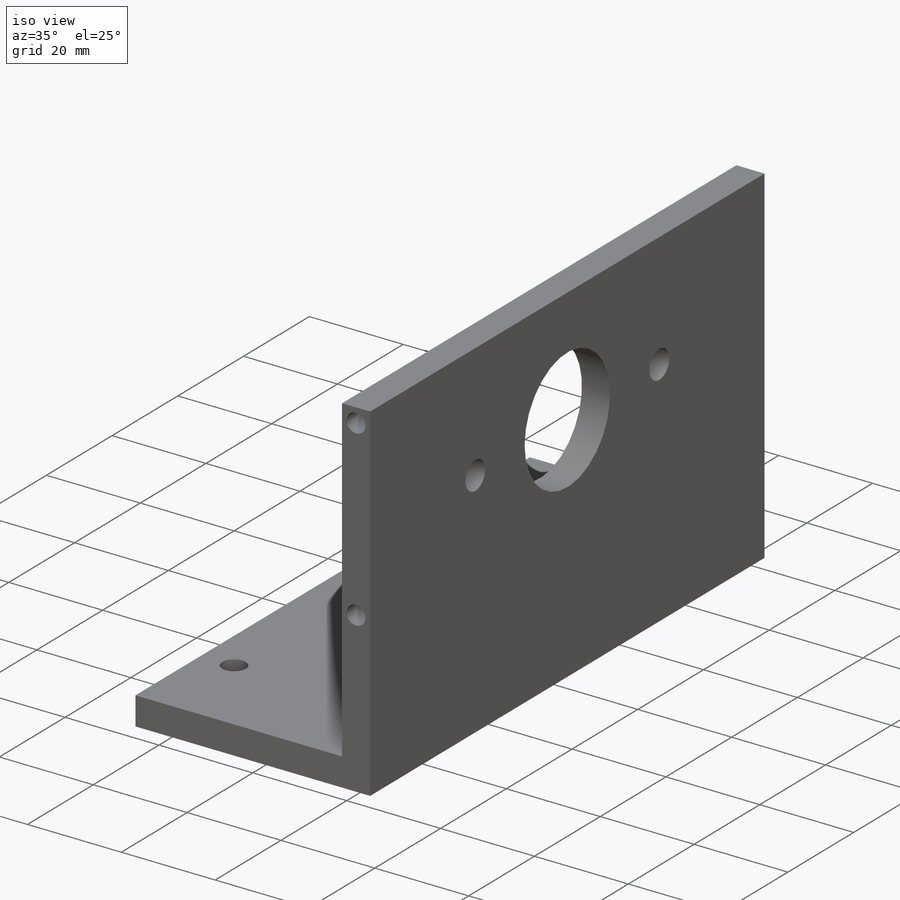
[diagram: iso view]
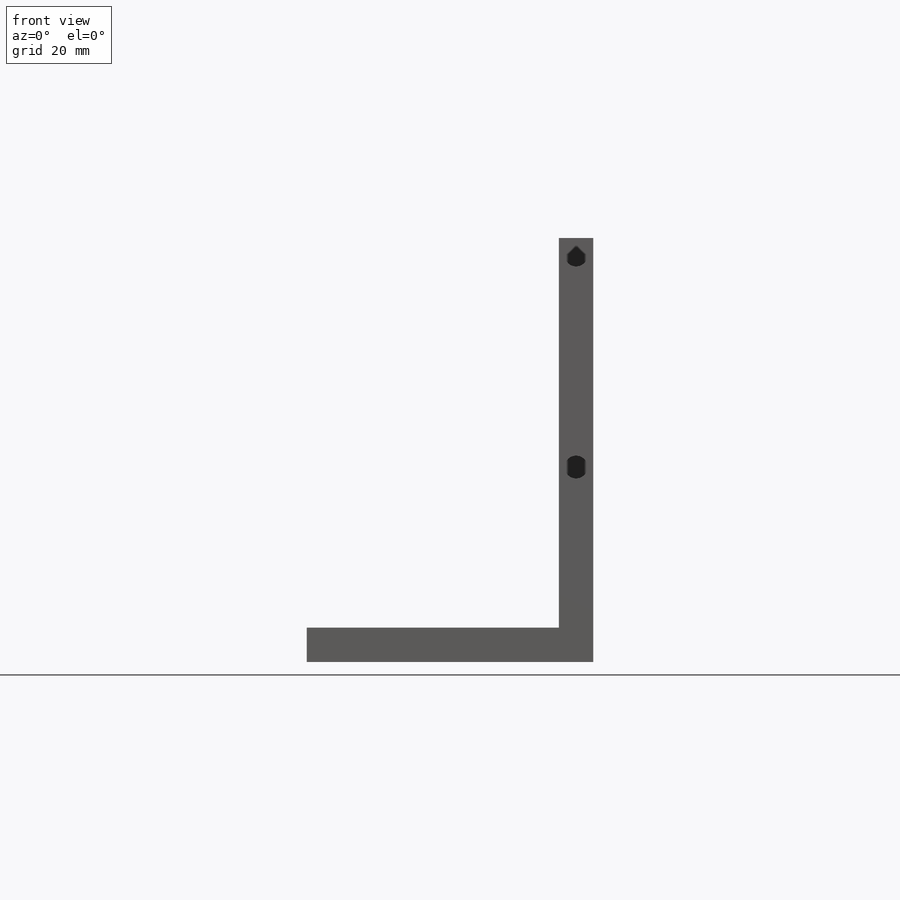
[diagram: front view]
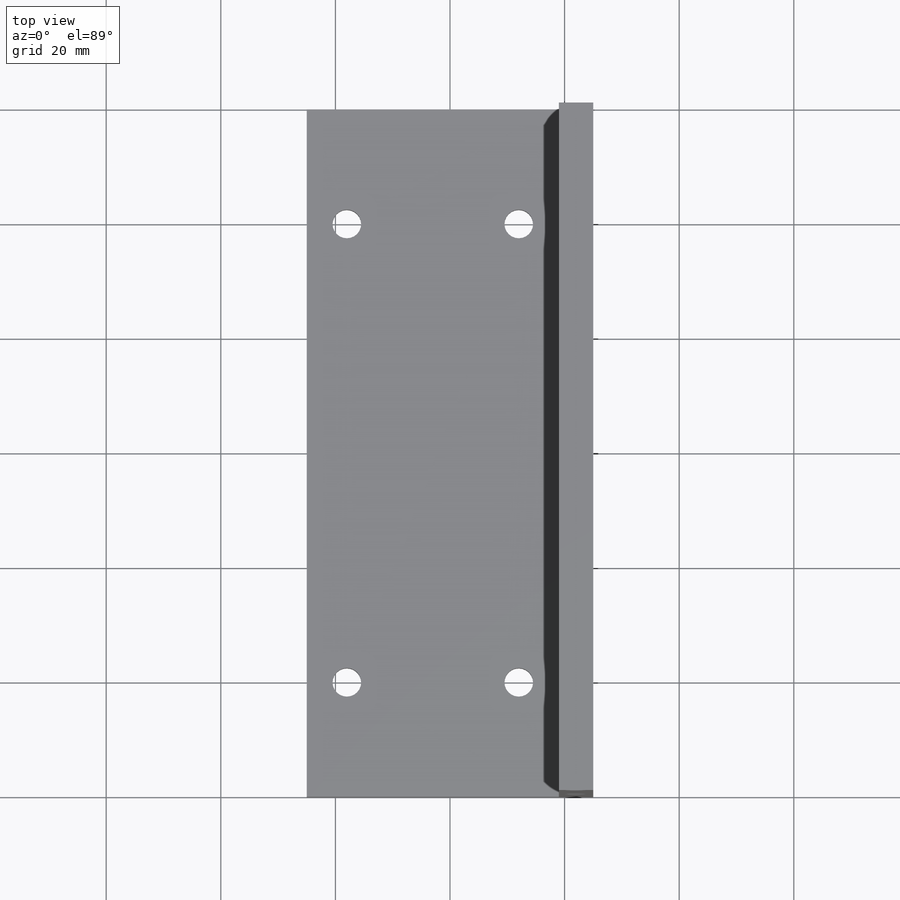
[diagram: top view]
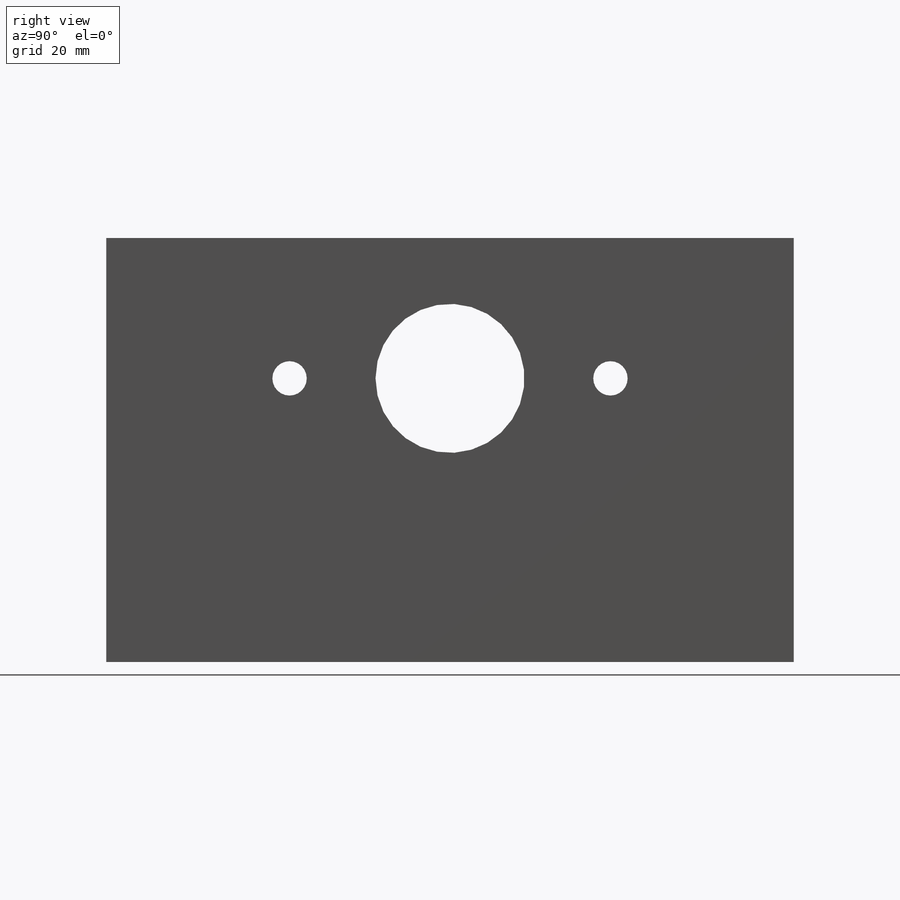
[diagram: right view]
SOLIDWORKS PART (.sldprt)
format: sldprt  version: not decoded by parser v0  size: 254,464 bytes
history: native  units: mm
features: sketch x5, plane x4, cut_extrude x3, extrude x2, material x1, mirror x1 (+10 scaffold rows collapsed)
feature tree (26):
  scaffold x10  (default folders/planes/origin — collapsed)
  material  "6061 合金"
  plane  "前视基准面"
  plane  "上视基准面"
  plane  "右视基准面"
  sketch  "草图1"  dims[c1.D1=~101.836379mm c1.D2=~172.217506mm c2.D1=50.0mm c2.D2=120.0mm c2.D3=100.0mm c2.D4=~5.554123mm c3.D3=6.0mm c3.D4=100.0mm]
  extrude  "凸台-拉伸1"  Depth=6mm
  extrude  "凸台-拉伸2"  [1 undecoded]
  sketch  "草图1<3>"  dims[D1=74.0mm]
  sketch  "草图2"  dims[c1.D1=26.0mm c1.D2=~50.106613mm c1.D3=6.0mm c2.D1=~17.452272mm c2.D2=43.5mm c2.D3=~19.95171mm c2.D4=28.0mm c2.D5=60.0mm]
  cut_extrude  "切除-拉伸1"  [1 undecoded]
  sketch  "草图3"  dims[c1.D3=5.0mm c1.D1=~89.116084mm c1.D2=~30.449712mm c2.D1=30.0mm c2.D2=80.0mm c2.D3=7.0mm c2.D4=13.0mm]
  cut_extrude  "切除-拉伸2"  Depth=10mm
  sketch  "草图4"  dims[D1=37.0mm D2=3.0mm]
  cut_extrude  "切除-拉伸3"  Depth=20mm
  plane  "基准面1"
  mirror  "镜向1"
decode coverage: 8 of 11 modeling features carry decoded parameters
note: ~ marks probable driven/reference dimensions
note: 2 parameter values undecoded
note: suppression state not decoded; provenance and decode notes live in map.json
